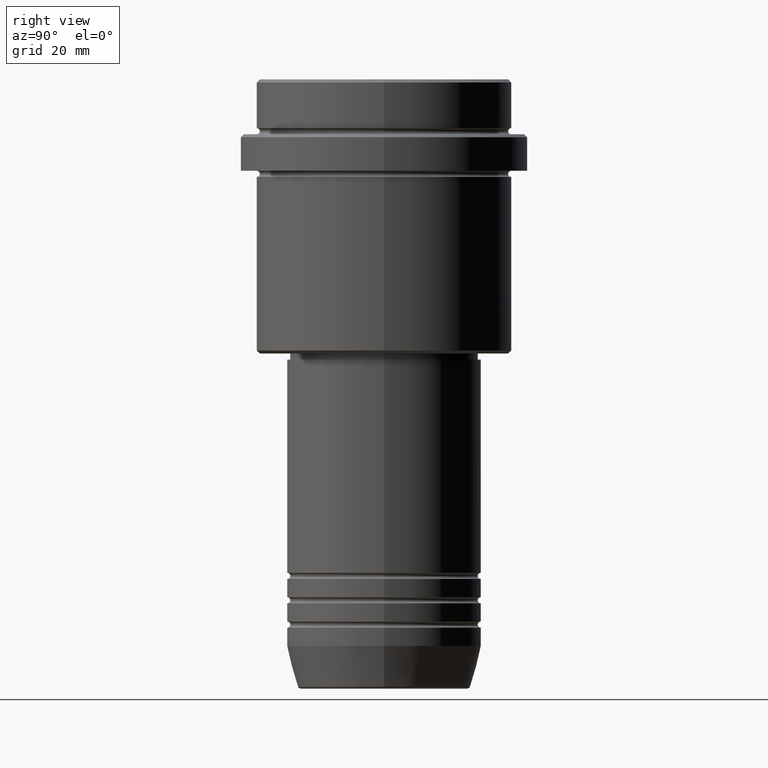
[diagram: clean part render]
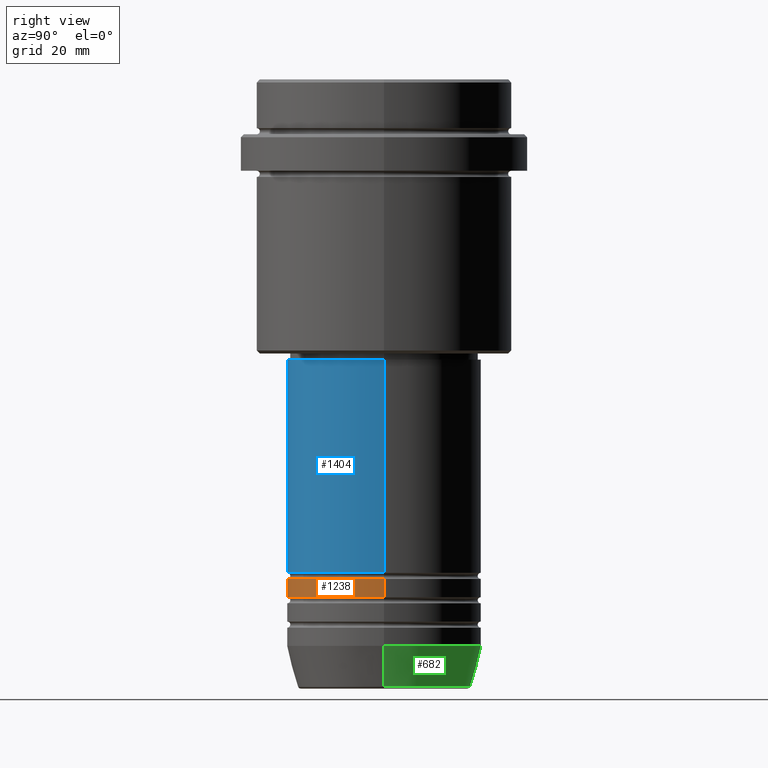
[diagram: same view with three faces highlighted in distinct colors, each labeled with its STEP entity id]
A machine part, right view with three faces highlighted in distinct colors.
Their STEP definitions:

[orange] entity #1238 — the highlighted cylindrical surface (partial cylindrical patch) has radius 16 mm, axis along (-0, -0, 1).
#60 = AXIS2_PLACEMENT_3D ( 'NONE', #634, #618, #174 ) ;
#71 = CIRCLE ( 'NONE', #696, 16.00000000000000000 ) ;
#174 = DIRECTION ( 'NONE',  ( 1.000000000000000000, 0.000000000000000000, 0.000000000000000000 ) ) ;
#181 = VERTEX_POINT ( 'NONE', #285 ) ;
#192 = EDGE_CURVE ( 'NONE', #181, #655, #423, .T. ) ;
#223 = CARTESIAN_POINT ( 'NONE',  ( -16.00000000000000000, 1.959434878635765131E-15, 0.000000000000000000 ) ) ;
#229 = ORIENTED_EDGE ( 'NONE', *, *, #192, .F. ) ;
#277 = CARTESIAN_POINT ( 'NONE',  ( 16.00000000000000000, 0.000000000000000000, 0.000000000000000000 ) ) ;
#285 = CARTESIAN_POINT ( 'NONE',  ( -16.00000000000000000, 1.959434878635765131E-15, -84.99999999999988631 ) ) ;
#292 = EDGE_CURVE ( 'NONE', #655, #495, #71, .T. ) ;
#355 = VERTEX_POINT ( 'NONE', #468 ) ;
#423 = LINE ( 'NONE', #223, #583 ) ;
#427 = FACE_OUTER_BOUND ( 'NONE', #888, .T. ) ;
#468 = CARTESIAN_POINT ( 'NONE',  ( 16.00000000000000000, 0.000000000000000000, -84.99999999999988631 ) ) ;
#495 = VERTEX_POINT ( 'NONE', #717 ) ;
#535 = CARTESIAN_POINT ( 'NONE',  ( 0.000000000000000000, 0.000000000000000000, -81.99999999999987210 ) ) ;
#549 = EDGE_CURVE ( 'NONE', #181, #355, #610, .T. ) ;
#552 = DIRECTION ( 'NONE',  ( 1.000000000000000000, 0.000000000000000000, 0.000000000000000000 ) ) ;
#583 = VECTOR ( 'NONE', #1290, 1000.000000000000000 ) ;
#596 = ORIENTED_EDGE ( 'NONE', *, *, #292, .F. ) ;
#610 = CIRCLE ( 'NONE', #1275, 16.00000000000000000 ) ;
#618 = DIRECTION ( 'NONE',  ( -0.000000000000000000, -0.000000000000000000, 1.000000000000000000 ) ) ;
#634 = CARTESIAN_POINT ( 'NONE',  ( 0.000000000000000000, 0.000000000000000000, 0.000000000000000000 ) ) ;
#643 = CARTESIAN_POINT ( 'NONE',  ( 0.000000000000000000, 0.000000000000000000, -84.99999999999988631 ) ) ;
#655 = VERTEX_POINT ( 'NONE', #1387 ) ;
#669 = DIRECTION ( 'NONE',  ( -0.000000000000000000, -0.000000000000000000, 1.000000000000000000 ) ) ;
#696 = AXIS2_PLACEMENT_3D ( 'NONE', #535, #1094, #552 ) ;
#714 = CYLINDRICAL_SURFACE ( 'NONE', #60, 16.00000000000000000 ) ;
#717 = CARTESIAN_POINT ( 'NONE',  ( 16.00000000000000000, 0.000000000000000000, -81.99999999999987210 ) ) ;
#872 = DIRECTION ( 'NONE',  ( 1.000000000000000000, 0.000000000000000000, 0.000000000000000000 ) ) ;
#888 = EDGE_LOOP ( 'NONE', ( #229, #1315, #1141, #596 ) ) ;
#905 = DIRECTION ( 'NONE',  ( -0.000000000000000000, -0.000000000000000000, 1.000000000000000000 ) ) ;
#956 = VECTOR ( 'NONE', #905, 1000.000000000000000 ) ;
#1094 = DIRECTION ( 'NONE',  ( -0.000000000000000000, -0.000000000000000000, 1.000000000000000000 ) ) ;
#1140 = LINE ( 'NONE', #277, #956 ) ;
#1141 = ORIENTED_EDGE ( 'NONE', *, *, #1149, .T. ) ;
#1149 = EDGE_CURVE ( 'NONE', #355, #495, #1140, .T. ) ;
#1238 = ADVANCED_FACE ( 'NONE', ( #427 ), #714, .T. ) ;
#1275 = AXIS2_PLACEMENT_3D ( 'NONE', #643, #669, #872 ) ;
#1290 = DIRECTION ( 'NONE',  ( -0.000000000000000000, -0.000000000000000000, 1.000000000000000000 ) ) ;
#1315 = ORIENTED_EDGE ( 'NONE', *, *, #549, .T. ) ;
#1387 = CARTESIAN_POINT ( 'NONE',  ( -16.00000000000000000, 1.959434878635765131E-15, -81.99999999999987210 ) ) ;

[blue] entity #1404 — the highlighted cylindrical surface (partial cylindrical patch) has radius 16 mm, axis along (-0, -0, 1).
#32 = EDGE_CURVE ( 'NONE', #366, #808, #1216, .T. ) ;
#47 = CARTESIAN_POINT ( 'NONE',  ( -16.00000000000000000, 1.959434878635765131E-15, -80.99999999999987210 ) ) ;
#62 = EDGE_CURVE ( 'NONE', #808, #109, #764, .T. ) ;
#64 = AXIS2_PLACEMENT_3D ( 'NONE', #774, #435, #328 ) ;
#65 = CARTESIAN_POINT ( 'NONE',  ( 16.00000000000000000, 0.000000000000000000, 0.000000000000000000 ) ) ;
#73 = CARTESIAN_POINT ( 'NONE',  ( 16.00000000000000355, 0.000000000000000000, -45.99999999999997868 ) ) ;
#99 = EDGE_CURVE ( 'NONE', #188, #109, #834, .T. ) ;
#109 = VERTEX_POINT ( 'NONE', #73 ) ;
#112 = ORIENTED_EDGE ( 'NONE', *, *, #1015, .T. ) ;
#136 = ORIENTED_EDGE ( 'NONE', *, *, #62, .F. ) ;
#150 = DIRECTION ( 'NONE',  ( -0.000000000000000000, -0.000000000000000000, 1.000000000000000000 ) ) ;
#151 = VECTOR ( 'NONE', #150, 1000.000000000000000 ) ;
#173 = AXIS2_PLACEMENT_3D ( 'NONE', #727, #1048, #957 ) ;
#188 = VERTEX_POINT ( 'NONE', #649 ) ;
#203 = CYLINDRICAL_SURFACE ( 'NONE', #64, 16.00000000000000000 ) ;
#328 = DIRECTION ( 'NONE',  ( 1.000000000000000000, 0.000000000000000000, 0.000000000000000000 ) ) ;
#366 = VERTEX_POINT ( 'NONE', #47 ) ;
#385 = DIRECTION ( 'NONE',  ( -0.000000000000000000, -0.000000000000000000, 1.000000000000000000 ) ) ;
#398 = CARTESIAN_POINT ( 'NONE',  ( 0.000000000000000000, 0.000000000000000000, -80.99999999999987210 ) ) ;
#400 = CARTESIAN_POINT ( 'NONE',  ( -16.00000000000000355, 1.959434878635765526E-15, -45.99999999999997868 ) ) ;
#435 = DIRECTION ( 'NONE',  ( -0.000000000000000000, -0.000000000000000000, 1.000000000000000000 ) ) ;
#476 = CARTESIAN_POINT ( 'NONE',  ( -16.00000000000000000, 1.959434878635765131E-15, 0.000000000000000000 ) ) ;
#627 = VECTOR ( 'NONE', #385, 1000.000000000000000 ) ;
#649 = CARTESIAN_POINT ( 'NONE',  ( 16.00000000000000000, 0.000000000000000000, -80.99999999999987210 ) ) ;
#727 = CARTESIAN_POINT ( 'NONE',  ( 0.000000000000000000, 0.000000000000000000, -45.99999999999997868 ) ) ;
#764 = CIRCLE ( 'NONE', #173, 16.00000000000000355 ) ;
#774 = CARTESIAN_POINT ( 'NONE',  ( 0.000000000000000000, 0.000000000000000000, 0.000000000000000000 ) ) ;
#808 = VERTEX_POINT ( 'NONE', #400 ) ;
#815 = ORIENTED_EDGE ( 'NONE', *, *, #32, .F. ) ;
#824 = DIRECTION ( 'NONE',  ( 1.000000000000000000, 0.000000000000000000, 0.000000000000000000 ) ) ;
#834 = LINE ( 'NONE', #65, #627 ) ;
#839 = CIRCLE ( 'NONE', #840, 16.00000000000000000 ) ;
#840 = AXIS2_PLACEMENT_3D ( 'NONE', #398, #1251, #824 ) ;
#881 = FACE_OUTER_BOUND ( 'NONE', #1338, .T. ) ;
#957 = DIRECTION ( 'NONE',  ( 1.000000000000000000, 0.000000000000000000, 0.000000000000000000 ) ) ;
#1015 = EDGE_CURVE ( 'NONE', #366, #188, #839, .T. ) ;
#1040 = ORIENTED_EDGE ( 'NONE', *, *, #99, .T. ) ;
#1048 = DIRECTION ( 'NONE',  ( -0.000000000000000000, -0.000000000000000000, 1.000000000000000000 ) ) ;
#1216 = LINE ( 'NONE', #476, #151 ) ;
#1251 = DIRECTION ( 'NONE',  ( -0.000000000000000000, -0.000000000000000000, 1.000000000000000000 ) ) ;
#1338 = EDGE_LOOP ( 'NONE', ( #815, #112, #1040, #136 ) ) ;
#1404 = ADVANCED_FACE ( 'NONE', ( #881 ), #203, .T. ) ;

[green] entity #682 — the highlighted conical surface has half-angle 15 deg.
#50 = VECTOR ( 'NONE', #1222, 1000.000000000000000 ) ;
#63 = CARTESIAN_POINT ( 'NONE',  ( 14.22365507213718949, 0.000000000000000000, -99.62940952255127058 ) ) ;
#131 = EDGE_CURVE ( 'NONE', #478, #438, #1198, .T. ) ;
#155 = CARTESIAN_POINT ( 'NONE',  ( 0.000000000000000000, 0.000000000000000000, -93.00000000000000000 ) ) ;
#288 = DIRECTION ( 'NONE',  ( 1.000000000000000000, 0.000000000000000000, 0.000000000000000000 ) ) ;
#304 = ORIENTED_EDGE ( 'NONE', *, *, #1415, .F. ) ;
#305 = VECTOR ( 'NONE', #978, 1000.000000000000000 ) ;
#375 = DIRECTION ( 'NONE',  ( -0.000000000000000000, -0.000000000000000000, 1.000000000000000000 ) ) ;
#382 = DIRECTION ( 'NONE',  ( 1.000000000000000000, 0.000000000000000000, 0.000000000000000000 ) ) ;
#386 = AXIS2_PLACEMENT_3D ( 'NONE', #950, #1396, #615 ) ;
#438 = VERTEX_POINT ( 'NONE', #1150 ) ;
#478 = VERTEX_POINT ( 'NONE', #63 ) ;
#558 = CARTESIAN_POINT ( 'NONE',  ( -16.00000000000000000, 1.959434878635765131E-15, -93.00000000000000000 ) ) ;
#587 = CONICAL_SURFACE ( 'NONE', #1395, 16.00000000000000000, 0.2617993877991500740 ) ;
#605 = VERTEX_POINT ( 'NONE', #821 ) ;
#615 = DIRECTION ( 'NONE',  ( 1.000000000000000000, 0.000000000000000000, 0.000000000000000000 ) ) ;
#661 = LINE ( 'NONE', #1002, #305 ) ;
#671 = EDGE_CURVE ( 'NONE', #1079, #605, #674, .T. ) ;
#674 = CIRCLE ( 'NONE', #1111, 16.00000000000000000 ) ;
#682 = ADVANCED_FACE ( 'NONE', ( #1359 ), #587, .T. ) ;
#692 = ORIENTED_EDGE ( 'NONE', *, *, #946, .T. ) ;
#780 = LINE ( 'NONE', #558, #50 ) ;
#821 = CARTESIAN_POINT ( 'NONE',  ( -16.00000000000000000, 1.959434878635765131E-15, -93.00000000000000000 ) ) ;
#830 = DIRECTION ( 'NONE',  ( -0.000000000000000000, -0.000000000000000000, 1.000000000000000000 ) ) ;
#913 = CARTESIAN_POINT ( 'NONE',  ( 0.000000000000000000, 0.000000000000000000, -93.00000000000000000 ) ) ;
#946 = EDGE_CURVE ( 'NONE', #438, #605, #780, .T. ) ;
#950 = CARTESIAN_POINT ( 'NONE',  ( 0.000000000000000000, 0.000000000000000000, -99.62940952255127058 ) ) ;
#978 = DIRECTION ( 'NONE',  ( 0.2588190451025213501, 0.000000000000000000, 0.9659258262890680902 ) ) ;
#990 = ORIENTED_EDGE ( 'NONE', *, *, #671, .F. ) ;
#991 = EDGE_LOOP ( 'NONE', ( #1029, #692, #990, #304 ) ) ;
#1002 = CARTESIAN_POINT ( 'NONE',  ( 16.00000000000000000, 0.000000000000000000, -93.00000000000000000 ) ) ;
#1029 = ORIENTED_EDGE ( 'NONE', *, *, #131, .T. ) ;
#1079 = VERTEX_POINT ( 'NONE', #1266 ) ;
#1111 = AXIS2_PLACEMENT_3D ( 'NONE', #155, #830, #288 ) ;
#1150 = CARTESIAN_POINT ( 'NONE',  ( -14.22365507213718949, 1.850665122131323337E-15, -99.62940952255127058 ) ) ;
#1198 = CIRCLE ( 'NONE', #386, 14.22365507213718949 ) ;
#1222 = DIRECTION ( 'NONE',  ( -0.2588190451025213501, 3.169619151431772337E-17, 0.9659258262890680902 ) ) ;
#1266 = CARTESIAN_POINT ( 'NONE',  ( 16.00000000000000000, 0.000000000000000000, -93.00000000000000000 ) ) ;
#1359 = FACE_OUTER_BOUND ( 'NONE', #991, .T. ) ;
#1395 = AXIS2_PLACEMENT_3D ( 'NONE', #913, #375, #382 ) ;
#1396 = DIRECTION ( 'NONE',  ( -0.000000000000000000, -0.000000000000000000, 1.000000000000000000 ) ) ;
#1415 = EDGE_CURVE ( 'NONE', #478, #1079, #661, .T. ) ;